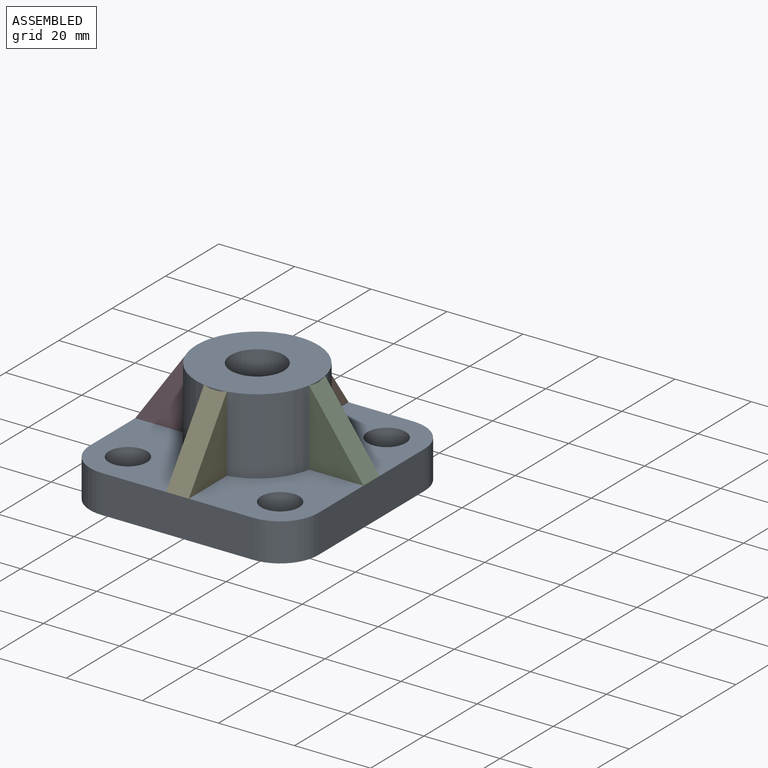
[diagram: assembled view]
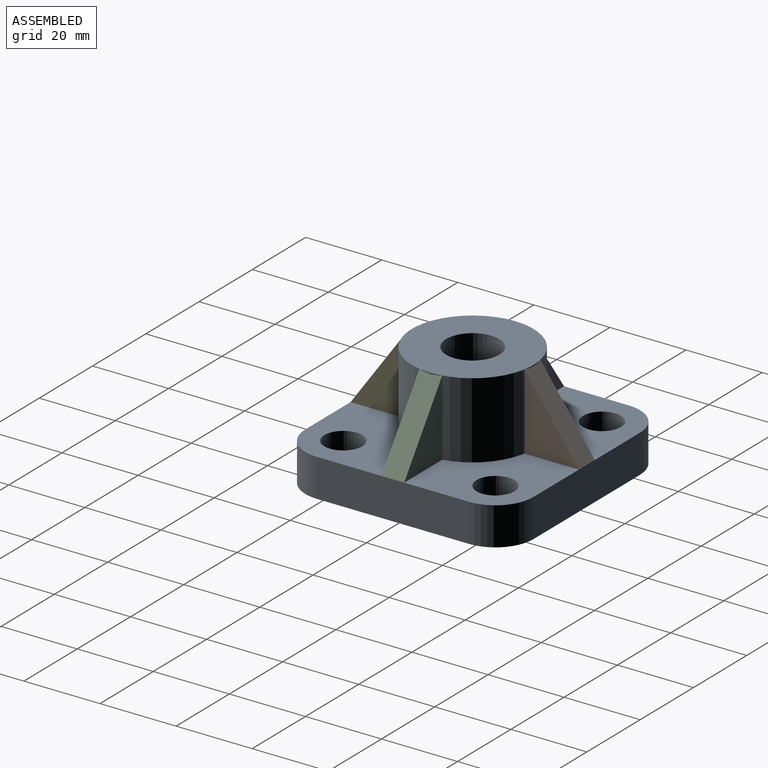
[diagram: assembled view, second angle]
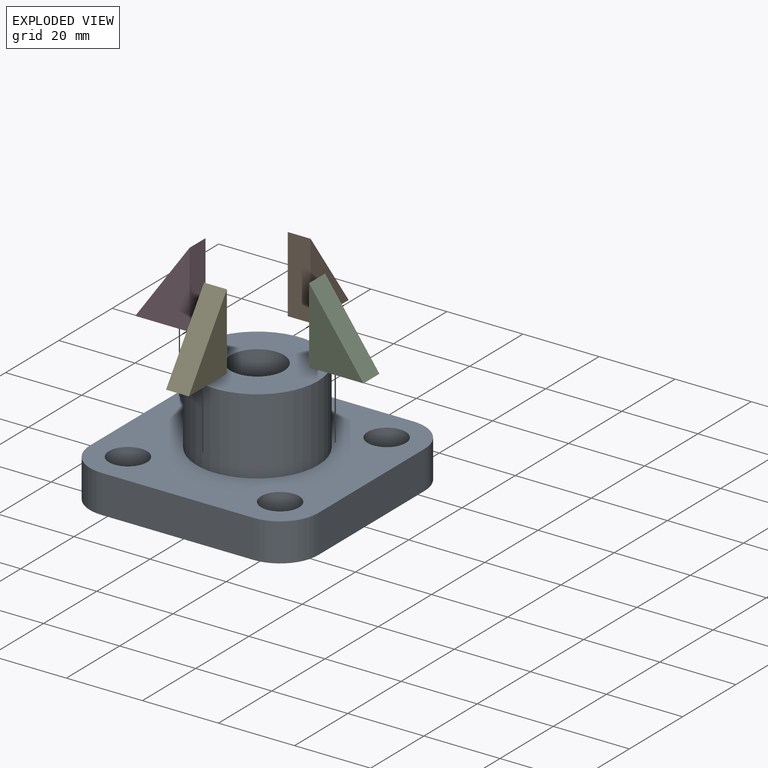
[diagram: exploded view]
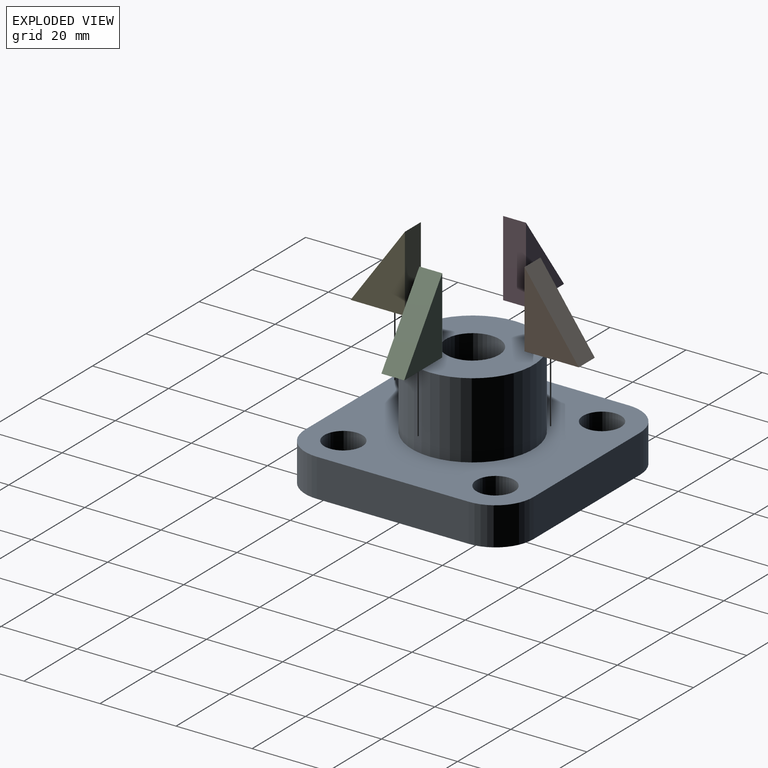
[diagram: exploded view, second angle]
ASSEMBLY  parts=5 mates=4
PART A: 17 faces, bbox 60x60x30 mm
  f0: plane 40x10mm, normal (1,0,0), area 400mm2, adj f4,f5,f6,f9
  f1: plane 40x10mm, normal (0,1,0), area 400mm2, adj f4,f5,f6,f7
  f2: plane 40x10mm, normal (-1,0,0), area 400mm2, adj f4,f5,f7,f8
  f3: plane 40x10mm, normal (0,-1,0), area 400mm2, adj f4,f5,f8,f9
  f4: plane 60x60mm, normal (0,0,1), area 2395.8mm2, adj f0,f1,f2,f3,f6,f7,f8,f9
  f5: plane 60x60mm, normal (0,0,-1), area 3046.1mm2, adj f0,f1,f2,f3,f6,f7,f8,f9
  f6: cylinder r=10mm len=10mm, axis (0,0,1), area 157.1mm2, adj f0,f1,f4,f5
  f7: cylinder r=10mm len=10mm, axis (0,0,-1), area 157.1mm2, adj f1,f2,f4,f5
  f8: cylinder r=10mm len=10mm, axis (0,0,1), area 157.1mm2, adj f2,f3,f4,f5
  f9: cylinder r=10mm len=10mm, axis (0,0,-1), area 157.1mm2, adj f0,f3,f4,f5
  f10: cylinder r=5mm len=10mm, axis (0,0,1), area 314.2mm2, adj f4,f5
  f11: cylinder r=5mm len=10mm, axis (0,0,1), area 314.2mm2, adj f4,f5
  f12: cylinder r=5mm len=10mm, axis (0,0,1), area 314.2mm2, adj f4,f5
  f13: cylinder r=5mm len=10mm, axis (0,0,1), area 314.2mm2, adj f4,f5
  f14: cylinder r=16mm len=32mm, axis (0,0,-1), area 2010.6mm2, adj f4,f15
  f15: plane 32x32mm, normal (0,0,1), area 650.3mm2, adj f14,f16
  f16: cylinder r=7mm len=30mm, axis (0,0,1), area 1319.5mm2, adj f5,f15
PART B: 5 faces, bbox 14.3x6x20 mm
  f0: plane 20x6mm, normal (1,0,0), area 120mm2, adj f1,f2,f3,f4
  f1: plane 20x14.28mm, normal (0,1,0), area 142.8mm2, adj f0,f3,f4
  f2: plane 20x14.28mm, normal (0,-1,0), area 142.8mm2, adj f0,f3,f4
  f3: plane 14.28x6mm, normal (0,0,-1), area 85.7mm2, adj f0,f1,f2,f4
  f4: plane 20x14.28mm, normal (-0.81,0,0.58), area 147.5mm2, adj f0,f1,f2,f3
PART C: same geometry as B
PART D: same geometry as B
PART E: same geometry as B
PLACE A t=(0.15,0.07,4.73)mm
PLACE B rot(axis=(0,0,-1),90deg) t=(0.15,22.92,9.73)mm
PLACE C rot(axis=(0,0,1),180deg) t=(23.01,0.07,9.73)mm
PLACE D t=(-22.71,0.07,9.73)mm
PLACE E rot(axis=(0,0,1),90deg) t=(0.15,-22.79,9.73)mm
MATE slider B.f3 <-> A.f4  axis (0,0,-1) through (0.15,30.07,9.73)mm
MATE slider D.f3 <-> A.f4  axis (0,0,-1) through (-29.85,0.07,9.73)mm
MATE slider E.f3 <-> A.f4  axis (0,0,-1) through (0.15,-29.93,9.73)mm
MATE slider C.f3 <-> A.f4  axis (0,0,-1) through (30.15,0.07,9.73)mm
